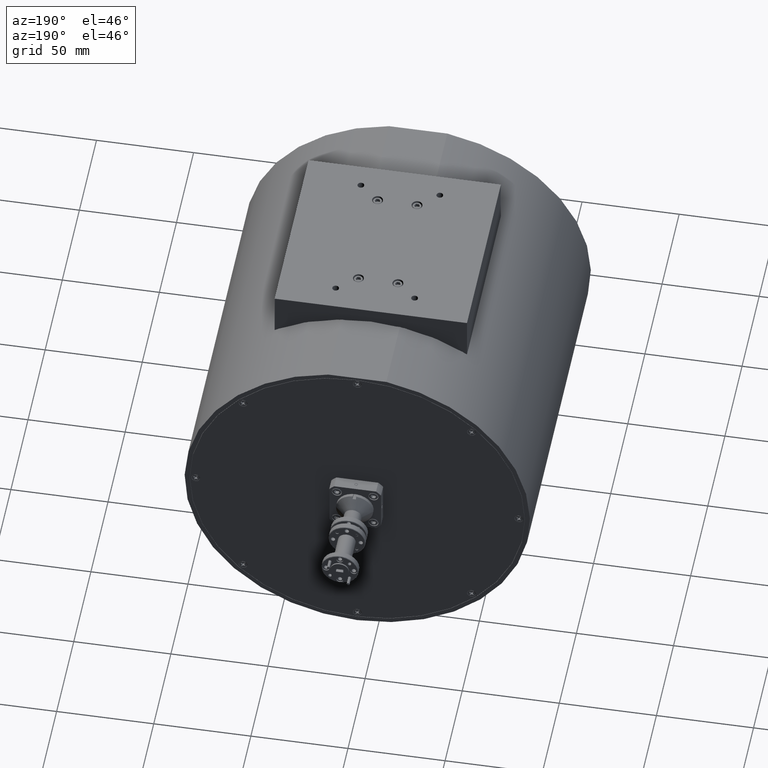
[diagram: clean part render]
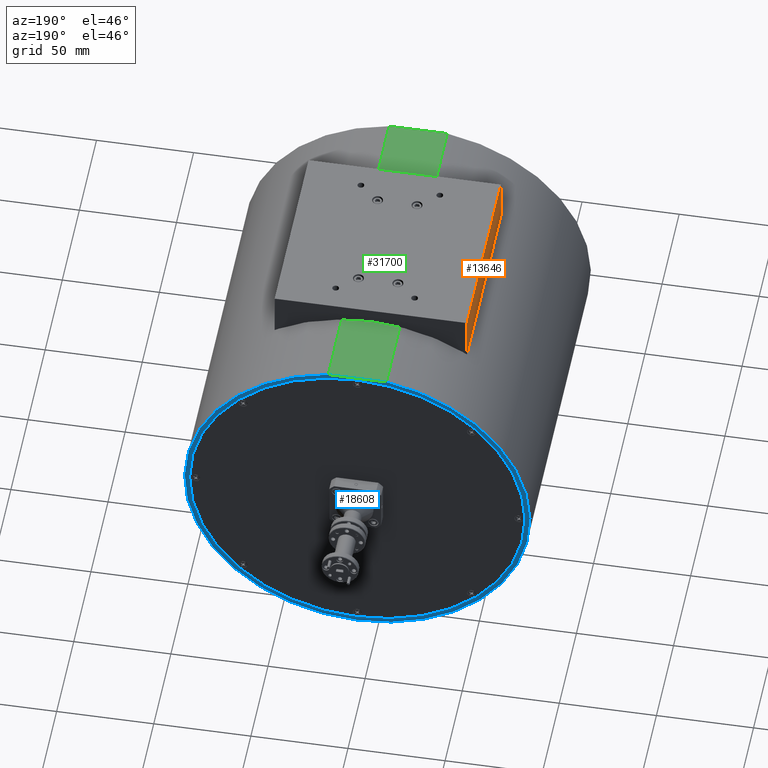
[diagram: same view with three faces highlighted in distinct colors, each labeled with its STEP entity id]
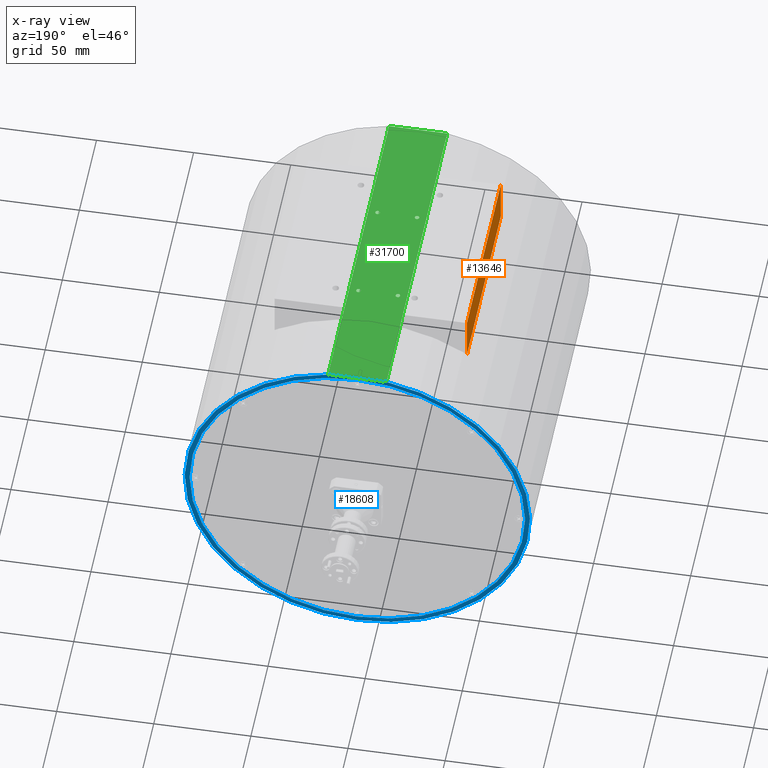
[diagram: x-ray of the same camera — body ghosted, the three highlighted faces saturated]
A machine part, auxiliary view with three faces highlighted in distinct colors.
The next image is the same camera in x-ray (body ghosted, the three faces saturated) — at least one of them is partly hidden behind the body in this view.
Their STEP definitions:

[orange] entity #13646 — the highlighted planar face has unit normal (1, -0, 0).
#1937 = VECTOR ( 'NONE', #5889, 39.37007874015748143 ) ;
#3868 = DIRECTION ( 'NONE',  ( -5.551115123125793795E-17, -1.000000000000000000, -1.803158653138880199E-16 ) ) ;
#5889 = DIRECTION ( 'NONE',  ( 1.247238774109135192E-16, 1.602807691679004676E-16, 1.000000000000000000 ) ) ;
#5890 = VERTEX_POINT ( 'NONE', #16146 ) ;
#7610 = ORIENTED_EDGE ( 'NONE', *, *, #12512, .T. ) ;
#9597 = CARTESIAN_POINT ( 'NONE',  ( -3.520761672972044565, 2.994377155374182031, 3.705178668100232109 ) ) ;
#9776 = EDGE_CURVE ( 'NONE', #17254, #42439, #43596, .T. ) ;
#11845 = ORIENTED_EDGE ( 'NONE', *, *, #17557, .F. ) ;
#12512 = EDGE_CURVE ( 'NONE', #42439, #5890, #20805, .T. ) ;
#12775 = VECTOR ( 'NONE', #15780, 39.37007874015748143 ) ;
#13646 = ADVANCED_FACE ( 'NONE', ( #20869 ), #24871, .F. ) ;
#14061 = ORIENTED_EDGE ( 'NONE', *, *, #9776, .T. ) ;
#14406 = CARTESIAN_POINT ( 'NONE',  ( -3.520761672972044565, 2.994377155374182031, 3.705178668100232109 ) ) ;
#15721 = VECTOR ( 'NONE', #24378, 39.37007874015748143 ) ;
#15780 = DIRECTION ( 'NONE',  ( -5.551115123125793795E-17, -1.000000000000000000, -1.803158653138880199E-16 ) ) ;
#16146 = CARTESIAN_POINT ( 'NONE',  ( -3.520761672972044565, -0.9056228446258178799, 4.605178668100231576 ) ) ;
#17254 = VERTEX_POINT ( 'NONE', #14406 ) ;
#17557 = EDGE_CURVE ( 'NONE', #17254, #27624, #43189, .T. ) ;
#17893 = CARTESIAN_POINT ( 'NONE',  ( -3.520761672972044565, -0.9056228446258178799, 4.605178668100231576 ) ) ;
#18972 = CARTESIAN_POINT ( 'NONE',  ( -3.520761672972044565, -0.9056228446258178799, 3.705178668100232109 ) ) ;
#20805 = LINE ( 'NONE', #17893, #15721 ) ;
#20869 = FACE_OUTER_BOUND ( 'NONE', #27756, .T. ) ;
#22436 = EDGE_CURVE ( 'NONE', #27624, #5890, #26060, .T. ) ;
#24378 = DIRECTION ( 'NONE',  ( 1.247238774109135192E-16, 1.602807691679004676E-16, 1.000000000000000000 ) ) ;
#24871 = PLANE ( 'NONE',  #36306 ) ;
#26060 = LINE ( 'NONE', #36562, #12775 ) ;
#27624 = VERTEX_POINT ( 'NONE', #29008 ) ;
#27756 = EDGE_LOOP ( 'NONE', ( #7610, #36856, #11845, #14061 ) ) ;
#29008 = CARTESIAN_POINT ( 'NONE',  ( -3.520761672972044565, 2.994377155374182031, 4.605178668100231576 ) ) ;
#32033 = CARTESIAN_POINT ( 'NONE',  ( -3.520761672972044565, 2.994377155374182031, 4.605178668100231576 ) ) ;
#33152 = CARTESIAN_POINT ( 'NONE',  ( -3.520761672972044565, 2.994377155374182031, 4.605178668100231576 ) ) ;
#36306 = AXIS2_PLACEMENT_3D ( 'NONE', #32033, #42093, #3868 ) ;
#36562 = CARTESIAN_POINT ( 'NONE',  ( -3.520761672972044565, 2.994377155374182031, 4.605178668100231576 ) ) ;
#36856 = ORIENTED_EDGE ( 'NONE', *, *, #22436, .F. ) ;
#36862 = DIRECTION ( 'NONE',  ( -5.551115123125793795E-17, -1.000000000000000000, -1.803158653138880199E-16 ) ) ;
#39848 = VECTOR ( 'NONE', #36862, 39.37007874015748143 ) ;
#42093 = DIRECTION ( 'NONE',  ( 1.000000000000000000, -5.551115123125796261E-17, 1.108240629956715077E-16 ) ) ;
#42439 = VERTEX_POINT ( 'NONE', #18972 ) ;
#43189 = LINE ( 'NONE', #33152, #1937 ) ;
#43596 = LINE ( 'NONE', #9597, #39848 ) ;

[blue] entity #18608 — the highlighted planar face has unit normal (0, 1, 0).
#360 = LINE ( 'NONE', #3509, #1481 ) ;
#1324 = DIRECTION ( 'NONE',  ( -0.0000000000000000000, -1.000000000000000000, -0.0000000000000000000 ) ) ;
#1481 = VECTOR ( 'NONE', #3932, 39.37007874015748143 ) ;
#1549 = CARTESIAN_POINT ( 'NONE',  ( -1.570761672972037504, 4.544377155374181854, 0.7987203422335082958 ) ) ;
#1865 = CARTESIAN_POINT ( 'NONE',  ( -1.570761672972037504, 4.544377155374181854, -2.701279657766491482 ) ) ;
#2757 = DIRECTION ( 'NONE',  ( 0.0000000000000000000, -0.0000000000000000000, 1.000000000000000000 ) ) ;
#3509 = CARTESIAN_POINT ( 'NONE',  ( -3.518902672313032998, 4.544377155374181854, 4.248720342233508696 ) ) ;
#3932 = DIRECTION ( 'NONE',  ( -1.000000000000000000, -0.0000000000000000000, -0.0000000000000000000 ) ) ;
#5738 = EDGE_CURVE ( 'NONE', #22994, #31705, #21242, .T. ) ;
#6004 = VERTEX_POINT ( 'NONE', #17690 ) ;
#7049 = DIRECTION ( 'NONE',  ( 0.0000000000000000000, 0.0000000000000000000, 1.000000000000000000 ) ) ;
#7697 = AXIS2_PLACEMENT_3D ( 'NONE', #9887, #12356, #2757 ) ;
#8267 = CIRCLE ( 'NONE', #42546, 3.399999999999999911 ) ;
#8340 = DIRECTION ( 'NONE',  ( 0.0000000000000000000, 1.000000000000000000, 0.0000000000000000000 ) ) ;
#8849 = EDGE_CURVE ( 'NONE', #10717, #31705, #360, .T. ) ;
#9103 = CIRCLE ( 'NONE', #40495, 3.399999999999999911 ) ;
#9462 = PLANE ( 'NONE',  #7697 ) ;
#9887 = CARTESIAN_POINT ( 'NONE',  ( -1.570761672972037504, 4.544377155374181854, 0.7987203422335082958 ) ) ;
#10717 = VERTEX_POINT ( 'NONE', #18422 ) ;
#11013 = VERTEX_POINT ( 'NONE', #20840 ) ;
#12356 = DIRECTION ( 'NONE',  ( 0.0000000000000000000, 1.000000000000000000, 0.0000000000000000000 ) ) ;
#13603 = CARTESIAN_POINT ( 'NONE',  ( -2.160252979099615889, 4.544377155374181854, 4.248720342233508696 ) ) ;
#13963 = EDGE_LOOP ( 'NONE', ( #29024, #16293 ) ) ;
#16293 = ORIENTED_EDGE ( 'NONE', *, *, #19430, .T. ) ;
#17690 = CARTESIAN_POINT ( 'NONE',  ( -1.570761672972037504, 4.544377155374181854, 4.198720342233507985 ) ) ;
#18050 = EDGE_CURVE ( 'NONE', #6004, #11013, #9103, .T. ) ;
#18422 = CARTESIAN_POINT ( 'NONE',  ( -0.9812703668444591187, 4.544377155374181854, 4.248720342233508696 ) ) ;
#18608 = ADVANCED_FACE ( 'NONE', ( #26684, #39837 ), #9462, .T. ) ;
#19430 = EDGE_CURVE ( 'NONE', #11013, #6004, #8267, .T. ) ;
#20226 = DIRECTION ( 'NONE',  ( -0.0000000000000000000, -1.000000000000000000, -0.0000000000000000000 ) ) ;
#20840 = CARTESIAN_POINT ( 'NONE',  ( -1.570761672972036838, 4.544377155374181854, -2.601279657766491393 ) ) ;
#21139 = EDGE_CURVE ( 'NONE', #10717, #22994, #35510, .T. ) ;
#21242 = CIRCLE ( 'NONE', #29122, 3.500000000000000000 ) ;
#21752 = CARTESIAN_POINT ( 'NONE',  ( -1.570761672972037504, 4.544377155374181854, 0.7987203422335082958 ) ) ;
#22196 = DIRECTION ( 'NONE',  ( 0.0000000000000000000, 0.0000000000000000000, 1.000000000000000000 ) ) ;
#22500 = EDGE_LOOP ( 'NONE', ( #34908, #23722, #31749 ) ) ;
#22994 = VERTEX_POINT ( 'NONE', #1865 ) ;
#23722 = ORIENTED_EDGE ( 'NONE', *, *, #21139, .T. ) ;
#23806 = CARTESIAN_POINT ( 'NONE',  ( -1.570761672972037504, 4.544377155374181854, 0.7987203422335082958 ) ) ;
#26684 = FACE_OUTER_BOUND ( 'NONE', #22500, .T. ) ;
#26945 = CARTESIAN_POINT ( 'NONE',  ( -1.570761672972037504, 4.544377155374181854, 0.7987203422335082958 ) ) ;
#29024 = ORIENTED_EDGE ( 'NONE', *, *, #18050, .T. ) ;
#29122 = AXIS2_PLACEMENT_3D ( 'NONE', #21752, #8340, #22196 ) ;
#31270 = DIRECTION ( 'NONE',  ( 0.0000000000000000000, 0.0000000000000000000, -1.000000000000000000 ) ) ;
#31705 = VERTEX_POINT ( 'NONE', #13603 ) ;
#31749 = ORIENTED_EDGE ( 'NONE', *, *, #5738, .T. ) ;
#34908 = ORIENTED_EDGE ( 'NONE', *, *, #8849, .F. ) ;
#35510 = CIRCLE ( 'NONE', #39077, 3.500000000000000000 ) ;
#39077 = AXIS2_PLACEMENT_3D ( 'NONE', #23806, #43730, #7049 ) ;
#39837 = FACE_BOUND ( 'NONE', #13963, .T. ) ;
#40495 = AXIS2_PLACEMENT_3D ( 'NONE', #1549, #1324, #31270 ) ;
#40573 = DIRECTION ( 'NONE',  ( 0.0000000000000000000, 0.0000000000000000000, -1.000000000000000000 ) ) ;
#42546 = AXIS2_PLACEMENT_3D ( 'NONE', #26945, #20226, #40573 ) ;
#43730 = DIRECTION ( 'NONE',  ( 0.0000000000000000000, 1.000000000000000000, 0.0000000000000000000 ) ) ;

[green] entity #31700 — the highlighted planar face has unit normal (0, 0, -1).
#334 = EDGE_CURVE ( 'NONE', #9500, #31705, #32170, .T. ) ;
#360 = LINE ( 'NONE', #3509, #1481 ) ;
#563 = DIRECTION ( 'NONE',  ( -0.0000000000000000000, -0.0000000000000000000, 1.000000000000000000 ) ) ;
#832 = CIRCLE ( 'NONE', #25822, 0.04449999999999948441 ) ;
#1481 = VECTOR ( 'NONE', #3932, 39.37007874015748143 ) ;
#2817 = CARTESIAN_POINT ( 'NONE',  ( -1.126261672972037609, 2.144377155374181942, 4.248720342233508696 ) ) ;
#3079 = EDGE_LOOP ( 'NONE', ( #10183, #20152 ) ) ;
#3478 = CARTESIAN_POINT ( 'NONE',  ( -0.9812703668444591187, 4.544377155374181854, 4.248720342233508696 ) ) ;
#3509 = CARTESIAN_POINT ( 'NONE',  ( -3.518902672313032998, 4.544377155374181854, 4.248720342233508696 ) ) ;
#3556 = DIRECTION ( 'NONE',  ( -1.000000000000000000, 0.0000000000000000000, -0.0000000000000000000 ) ) ;
#3907 = CARTESIAN_POINT ( 'NONE',  ( -1.170761672972037148, 2.144377155374181942, 4.248720342233508696 ) ) ;
#3932 = DIRECTION ( 'NONE',  ( -1.000000000000000000, -0.0000000000000000000, -0.0000000000000000000 ) ) ;
#4092 = AXIS2_PLACEMENT_3D ( 'NONE', #40640, #37934, #20073 ) ;
#6880 = DIRECTION ( 'NONE',  ( 1.000000000000000000, 0.0000000000000000000, 0.0000000000000000000 ) ) ;
#7172 = EDGE_LOOP ( 'NONE', ( #21594, #32860 ) ) ;
#7292 = CIRCLE ( 'NONE', #36557, 0.04449999999999948441 ) ;
#7552 = VECTOR ( 'NONE', #26087, 39.37007874015748143 ) ;
#7970 = AXIS2_PLACEMENT_3D ( 'NONE', #33276, #19858, #36188 ) ;
#8485 = CARTESIAN_POINT ( 'NONE',  ( -1.926261672972037875, -0.05562284462581846417, 4.248720342233508696 ) ) ;
#8849 = EDGE_CURVE ( 'NONE', #10717, #31705, #360, .T. ) ;
#8926 = ORIENTED_EDGE ( 'NONE', *, *, #11706, .F. ) ;
#9500 = VERTEX_POINT ( 'NONE', #35324 ) ;
#10135 = AXIS2_PLACEMENT_3D ( 'NONE', #43695, #13264, #26919 ) ;
#10183 = ORIENTED_EDGE ( 'NONE', *, *, #39812, .F. ) ;
#10458 = FACE_BOUND ( 'NONE', #3079, .T. ) ;
#10717 = VERTEX_POINT ( 'NONE', #18422 ) ;
#11392 = EDGE_CURVE ( 'NONE', #32927, #25090, #40444, .T. ) ;
#11523 = CIRCLE ( 'NONE', #10135, 0.04449999999999948441 ) ;
#11571 = VERTEX_POINT ( 'NONE', #2817 ) ;
#11591 = CARTESIAN_POINT ( 'NONE',  ( -2.160252979099615889, 4.544377155374181854, 4.248720342233508696 ) ) ;
#11706 = EDGE_CURVE ( 'NONE', #10717, #31378, #38093, .T. ) ;
#12210 = CARTESIAN_POINT ( 'NONE',  ( -3.518902672313032998, -2.455622844625818146, 4.248720342233508696 ) ) ;
#13020 = ORIENTED_EDGE ( 'NONE', *, *, #29510, .F. ) ;
#13264 = DIRECTION ( 'NONE',  ( -0.0000000000000000000, -0.0000000000000000000, 1.000000000000000000 ) ) ;
#13603 = CARTESIAN_POINT ( 'NONE',  ( -2.160252979099615889, 4.544377155374181854, 4.248720342233508696 ) ) ;
#13739 = VERTEX_POINT ( 'NONE', #43402 ) ;
#15058 = CARTESIAN_POINT ( 'NONE',  ( -1.970761672972037193, -0.05562284462581846417, 4.248720342233508696 ) ) ;
#16892 = VECTOR ( 'NONE', #28068, 39.37007874015748143 ) ;
#17165 = EDGE_LOOP ( 'NONE', ( #34868, #40165 ) ) ;
#17654 = CIRCLE ( 'NONE', #4092, 0.04449999999999948441 ) ;
#17658 = CARTESIAN_POINT ( 'NONE',  ( -2.015261672972036955, -0.05562284462581845723, 4.248720342233508696 ) ) ;
#18046 = DIRECTION ( 'NONE',  ( 1.000000000000000000, 0.0000000000000000000, 0.0000000000000000000 ) ) ;
#18177 = DIRECTION ( 'NONE',  ( -0.0000000000000000000, -0.0000000000000000000, 1.000000000000000000 ) ) ;
#18422 = CARTESIAN_POINT ( 'NONE',  ( -0.9812703668444591187, 4.544377155374181854, 4.248720342233508696 ) ) ;
#18735 = ORIENTED_EDGE ( 'NONE', *, *, #29745, .F. ) ;
#18758 = ORIENTED_EDGE ( 'NONE', *, *, #8849, .T. ) ;
#19858 = DIRECTION ( 'NONE',  ( -0.0000000000000000000, -0.0000000000000000000, 1.000000000000000000 ) ) ;
#20073 = DIRECTION ( 'NONE',  ( 1.000000000000000000, 0.0000000000000000000, 0.0000000000000000000 ) ) ;
#20102 = ORIENTED_EDGE ( 'NONE', *, *, #334, .F. ) ;
#20152 = ORIENTED_EDGE ( 'NONE', *, *, #39736, .F. ) ;
#20314 = VERTEX_POINT ( 'NONE', #17658 ) ;
#20683 = VERTEX_POINT ( 'NONE', #29495 ) ;
#20718 = EDGE_CURVE ( 'NONE', #28953, #11571, #17654, .T. ) ;
#20926 = CIRCLE ( 'NONE', #35919, 0.04449999999999948441 ) ;
#21412 = FACE_BOUND ( 'NONE', #21726, .T. ) ;
#21523 = CIRCLE ( 'NONE', #7970, 0.04449999999999948441 ) ;
#21594 = ORIENTED_EDGE ( 'NONE', *, *, #43183, .F. ) ;
#21726 = EDGE_LOOP ( 'NONE', ( #18735, #13020 ) ) ;
#22162 = ORIENTED_EDGE ( 'NONE', *, *, #27649, .F. ) ;
#22187 = DIRECTION ( 'NONE',  ( 1.000000000000000000, 0.0000000000000000000, 0.0000000000000000000 ) ) ;
#22945 = DIRECTION ( 'NONE',  ( -0.0000000000000000000, -0.0000000000000000000, 1.000000000000000000 ) ) ;
#23838 = EDGE_LOOP ( 'NONE', ( #18758, #20102, #22162, #8926 ) ) ;
#24078 = DIRECTION ( 'NONE',  ( -0.0000000000000000000, -0.0000000000000000000, 1.000000000000000000 ) ) ;
#24092 = FACE_OUTER_BOUND ( 'NONE', #23838, .T. ) ;
#24548 = PLANE ( 'NONE',  #28047 ) ;
#25090 = VERTEX_POINT ( 'NONE', #38305 ) ;
#25212 = CARTESIAN_POINT ( 'NONE',  ( -2.015261672972036511, 2.144377155374181942, 4.248720342233508696 ) ) ;
#25641 = VECTOR ( 'NONE', #42437, 39.37007874015748143 ) ;
#25822 = AXIS2_PLACEMENT_3D ( 'NONE', #26085, #22945, #39680 ) ;
#25851 = VERTEX_POINT ( 'NONE', #8485 ) ;
#26085 = CARTESIAN_POINT ( 'NONE',  ( -1.970761672972036971, 2.144377155374181942, 4.248720342233508696 ) ) ;
#26087 = DIRECTION ( 'NONE',  ( -1.000000000000000000, -0.0000000000000000000, -0.0000000000000000000 ) ) ;
#26919 = DIRECTION ( 'NONE',  ( 1.000000000000000000, 0.0000000000000000000, 0.0000000000000000000 ) ) ;
#27601 = AXIS2_PLACEMENT_3D ( 'NONE', #31887, #35231, #18046 ) ;
#27649 = EDGE_CURVE ( 'NONE', #31378, #9500, #42200, .T. ) ;
#28047 = AXIS2_PLACEMENT_3D ( 'NONE', #34815, #37492, #3556 ) ;
#28068 = DIRECTION ( 'NONE',  ( -0.0000000000000000000, -1.000000000000000000, -0.0000000000000000000 ) ) ;
#28953 = VERTEX_POINT ( 'NONE', #42637 ) ;
#29495 = CARTESIAN_POINT ( 'NONE',  ( -1.126261672972037831, -0.05562284462581846417, 4.248720342233508696 ) ) ;
#29510 = EDGE_CURVE ( 'NONE', #20314, #25851, #11523, .T. ) ;
#29745 = EDGE_CURVE ( 'NONE', #25851, #20314, #7292, .T. ) ;
#30811 = CARTESIAN_POINT ( 'NONE',  ( -1.170761672972037370, -0.05562284462581846417, 4.248720342233508696 ) ) ;
#30820 = CIRCLE ( 'NONE', #35086, 0.04449999999999948441 ) ;
#31314 = CARTESIAN_POINT ( 'NONE',  ( -0.9812703668444591187, -2.455622844625818146, 4.248720342233508696 ) ) ;
#31378 = VERTEX_POINT ( 'NONE', #31314 ) ;
#31700 = ADVANCED_FACE ( 'NONE', ( #37954, #41551, #21412, #10458, #24092 ), #24548, .F. ) ;
#31705 = VERTEX_POINT ( 'NONE', #13603 ) ;
#31887 = CARTESIAN_POINT ( 'NONE',  ( -1.970761672972036971, 2.144377155374181942, 4.248720342233508696 ) ) ;
#32170 = LINE ( 'NONE', #11591, #25641 ) ;
#32860 = ORIENTED_EDGE ( 'NONE', *, *, #20718, .F. ) ;
#32927 = VERTEX_POINT ( 'NONE', #25212 ) ;
#33276 = CARTESIAN_POINT ( 'NONE',  ( -1.170761672972037370, -0.05562284462581846417, 4.248720342233508696 ) ) ;
#34815 = CARTESIAN_POINT ( 'NONE',  ( -3.518902672313032998, -2.455622844625818146, 4.248720342233508696 ) ) ;
#34868 = ORIENTED_EDGE ( 'NONE', *, *, #40056, .F. ) ;
#35086 = AXIS2_PLACEMENT_3D ( 'NONE', #30811, #24078, #6880 ) ;
#35231 = DIRECTION ( 'NONE',  ( -0.0000000000000000000, -0.0000000000000000000, 1.000000000000000000 ) ) ;
#35324 = CARTESIAN_POINT ( 'NONE',  ( -2.160252979099615889, -2.455622844625818146, 4.248720342233508696 ) ) ;
#35919 = AXIS2_PLACEMENT_3D ( 'NONE', #3907, #563, #41481 ) ;
#36188 = DIRECTION ( 'NONE',  ( 1.000000000000000000, 0.0000000000000000000, 0.0000000000000000000 ) ) ;
#36557 = AXIS2_PLACEMENT_3D ( 'NONE', #15058, #18177, #22187 ) ;
#37492 = DIRECTION ( 'NONE',  ( 0.0000000000000000000, 0.0000000000000000000, -1.000000000000000000 ) ) ;
#37934 = DIRECTION ( 'NONE',  ( -0.0000000000000000000, -0.0000000000000000000, 1.000000000000000000 ) ) ;
#37954 = FACE_BOUND ( 'NONE', #17165, .T. ) ;
#38093 = LINE ( 'NONE', #3478, #16892 ) ;
#38305 = CARTESIAN_POINT ( 'NONE',  ( -1.926261672972037431, 2.144377155374181942, 4.248720342233508696 ) ) ;
#39680 = DIRECTION ( 'NONE',  ( 1.000000000000000000, 0.0000000000000000000, 0.0000000000000000000 ) ) ;
#39736 = EDGE_CURVE ( 'NONE', #13739, #20683, #21523, .T. ) ;
#39812 = EDGE_CURVE ( 'NONE', #20683, #13739, #30820, .T. ) ;
#40056 = EDGE_CURVE ( 'NONE', #25090, #32927, #832, .T. ) ;
#40165 = ORIENTED_EDGE ( 'NONE', *, *, #11392, .F. ) ;
#40444 = CIRCLE ( 'NONE', #27601, 0.04449999999999948441 ) ;
#40640 = CARTESIAN_POINT ( 'NONE',  ( -1.170761672972037148, 2.144377155374181942, 4.248720342233508696 ) ) ;
#41481 = DIRECTION ( 'NONE',  ( 1.000000000000000000, 0.0000000000000000000, 0.0000000000000000000 ) ) ;
#41551 = FACE_BOUND ( 'NONE', #7172, .T. ) ;
#42200 = LINE ( 'NONE', #12210, #7552 ) ;
#42437 = DIRECTION ( 'NONE',  ( 0.0000000000000000000, 1.000000000000000000, 0.0000000000000000000 ) ) ;
#42637 = CARTESIAN_POINT ( 'NONE',  ( -1.215261672972036466, 2.144377155374181942, 4.248720342233508696 ) ) ;
#43183 = EDGE_CURVE ( 'NONE', #11571, #28953, #20926, .T. ) ;
#43402 = CARTESIAN_POINT ( 'NONE',  ( -1.215261672972036688, -0.05562284462581845723, 4.248720342233508696 ) ) ;
#43695 = CARTESIAN_POINT ( 'NONE',  ( -1.970761672972037193, -0.05562284462581846417, 4.248720342233508696 ) ) ;